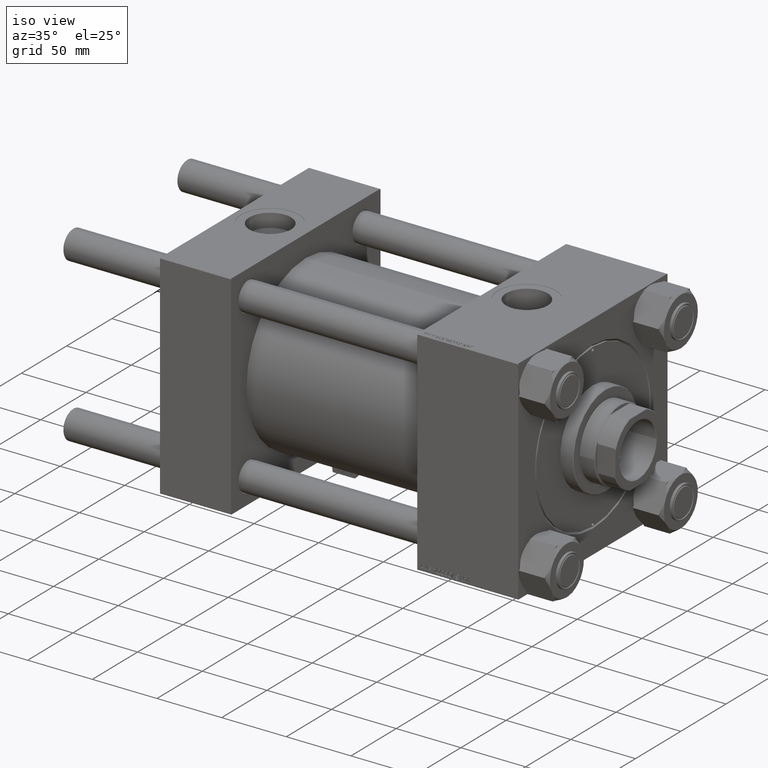
[diagram: clean part render]
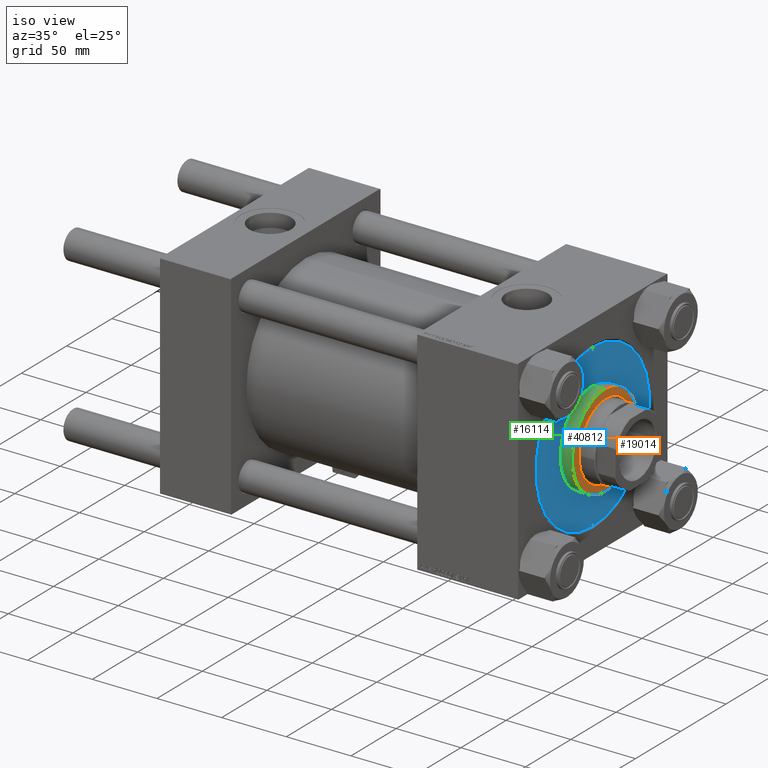
[diagram: same view with three faces highlighted in distinct colors, each labeled with its STEP entity id]
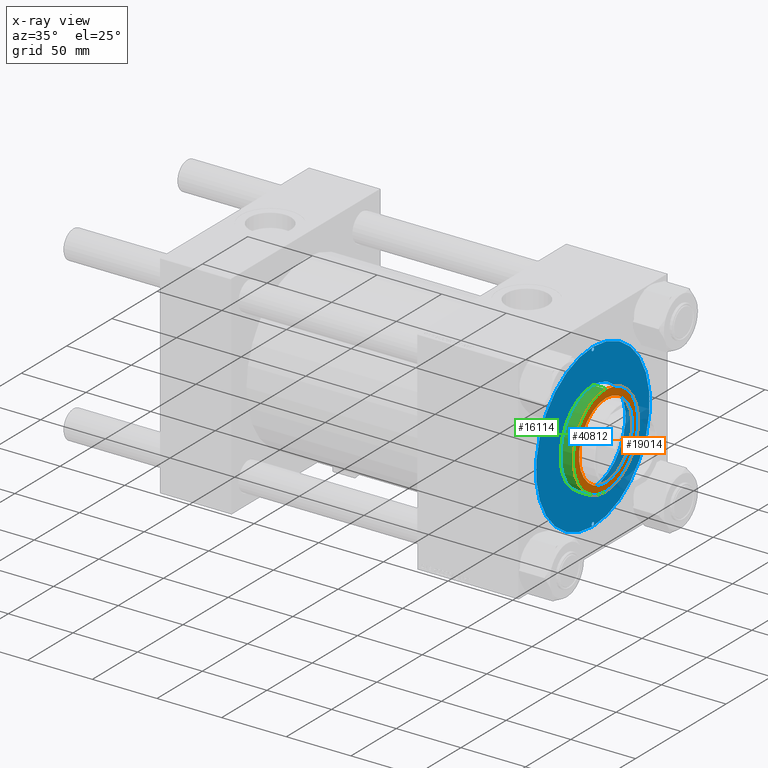
[diagram: x-ray of the same camera — body ghosted, the three highlighted faces saturated]
A machine part, iso view with three faces highlighted in distinct colors.
The next image is the same camera in x-ray (body ghosted, the three faces saturated) — at least one of them is partly hidden behind the body in this view.
Their STEP definitions:

[orange] entity #19014 — the highlighted planar face has unit normal (1, 0, -0).
#304 = DIRECTION ( 'NONE',  ( 0.000000000000000000, 0.000000000000000000, 1.000000000000000000 ) ) ;
#1872 = CIRCLE ( 'NONE', #32483, 29.50000000000000355 ) ;
#4552 = DIRECTION ( 'NONE',  ( 0.000000000000000000, 0.000000000000000000, 1.000000000000000000 ) ) ;
#5939 = DIRECTION ( 'NONE',  ( 1.000000000000000000, 0.000000000000000000, -0.000000000000000000 ) ) ;
#6591 = CARTESIAN_POINT ( 'NONE',  ( -35.50000000000000711, 0.000000000000000000, 38.69999999999999574 ) ) ;
#6767 = CARTESIAN_POINT ( 'NONE',  ( 0.000000000000000000, 0.000000000000000000, 38.69999999999999574 ) ) ;
#6942 = CIRCLE ( 'NONE', #13753, 29.50000000000000355 ) ;
#7216 = CARTESIAN_POINT ( 'NONE',  ( -29.50000000000000355, 3.612708057484692393E-15, 38.69999999999999574 ) ) ;
#10382 = CIRCLE ( 'NONE', #18107, 35.50000000000000711 ) ;
#10676 = DIRECTION ( 'NONE',  ( 1.000000000000000000, 0.000000000000000000, 0.000000000000000000 ) ) ;
#13097 = AXIS2_PLACEMENT_3D ( 'NONE', #35191, #14457, #5939 ) ;
#13599 = VERTEX_POINT ( 'NONE', #7216 ) ;
#13753 = AXIS2_PLACEMENT_3D ( 'NONE', #6767, #4552, #20789 ) ;
#14457 = DIRECTION ( 'NONE',  ( 0.000000000000000000, 0.000000000000000000, 1.000000000000000000 ) ) ;
#14586 = CARTESIAN_POINT ( 'NONE',  ( 35.50000000000000711, 4.378112306951787069E-15, 38.69999999999999574 ) ) ;
#16542 = CARTESIAN_POINT ( 'NONE',  ( 0.000000000000000000, 0.000000000000000000, 38.69999999999999574 ) ) ;
#18107 = AXIS2_PLACEMENT_3D ( 'NONE', #47650, #27437, #10676 ) ;
#18326 = VERTEX_POINT ( 'NONE', #6591 ) ;
#19014 = ADVANCED_FACE ( 'NONE', ( #42913, #34666 ), #50906, .T. ) ;
#19048 = VERTEX_POINT ( 'NONE', #40523 ) ;
#20379 = ORIENTED_EDGE ( 'NONE', *, *, #38553, .T. ) ;
#20789 = DIRECTION ( 'NONE',  ( 1.000000000000000000, 0.000000000000000000, 0.000000000000000000 ) ) ;
#21125 = DIRECTION ( 'NONE',  ( 1.000000000000000000, 0.000000000000000000, 0.000000000000000000 ) ) ;
#21629 = DIRECTION ( 'NONE',  ( 0.000000000000000000, 0.000000000000000000, 1.000000000000000000 ) ) ;
#21686 = ORIENTED_EDGE ( 'NONE', *, *, #32057, .F. ) ;
#21790 = ORIENTED_EDGE ( 'NONE', *, *, #36888, .T. ) ;
#24135 = CIRCLE ( 'NONE', #35994, 35.50000000000000711 ) ;
#27437 = DIRECTION ( 'NONE',  ( 0.000000000000000000, 0.000000000000000000, 1.000000000000000000 ) ) ;
#29165 = EDGE_LOOP ( 'NONE', ( #30247, #21686 ) ) ;
#30121 = CARTESIAN_POINT ( 'NONE',  ( 0.000000000000000000, 0.000000000000000000, 38.69999999999999574 ) ) ;
#30247 = ORIENTED_EDGE ( 'NONE', *, *, #31644, .F. ) ;
#31644 = EDGE_CURVE ( 'NONE', #19048, #13599, #6942, .T. ) ;
#32057 = EDGE_CURVE ( 'NONE', #13599, #19048, #1872, .T. ) ;
#32405 = EDGE_LOOP ( 'NONE', ( #21790, #20379 ) ) ;
#32483 = AXIS2_PLACEMENT_3D ( 'NONE', #16542, #304, #32760 ) ;
#32760 = DIRECTION ( 'NONE',  ( 1.000000000000000000, 0.000000000000000000, 0.000000000000000000 ) ) ;
#34666 = FACE_OUTER_BOUND ( 'NONE', #32405, .T. ) ;
#35191 = CARTESIAN_POINT ( 'NONE',  ( 0.000000000000000000, 0.000000000000000000, 38.69999999999999574 ) ) ;
#35994 = AXIS2_PLACEMENT_3D ( 'NONE', #30121, #21629, #21125 ) ;
#36888 = EDGE_CURVE ( 'NONE', #18326, #45604, #10382, .T. ) ;
#38553 = EDGE_CURVE ( 'NONE', #45604, #18326, #24135, .T. ) ;
#40523 = CARTESIAN_POINT ( 'NONE',  ( 29.50000000000000355, 0.000000000000000000, 38.69999999999999574 ) ) ;
#42913 = FACE_BOUND ( 'NONE', #29165, .T. ) ;
#45604 = VERTEX_POINT ( 'NONE', #14586 ) ;
#47650 = CARTESIAN_POINT ( 'NONE',  ( 0.000000000000000000, 0.000000000000000000, 38.69999999999999574 ) ) ;
#50906 = PLANE ( 'NONE',  #13097 ) ;

[blue] entity #40812 — the highlighted planar face has unit normal (1, 0, -0).
#50 = ORIENTED_EDGE ( 'NONE', *, *, #19592, .T. ) ;
#396 = VERTEX_POINT ( 'NONE', #9540 ) ;
#575 = DIRECTION ( 'NONE',  ( 0.000000000000000000, 0.000000000000000000, 1.000000000000000000 ) ) ;
#815 = AXIS2_PLACEMENT_3D ( 'NONE', #35116, #23683, #30592 ) ;
#1548 = CARTESIAN_POINT ( 'NONE',  ( 0.000000000000000000, 0.000000000000000000, 28.69999999999999929 ) ) ;
#2476 = EDGE_CURVE ( 'NONE', #43012, #27907, #43793, .T. ) ;
#2840 = DIRECTION ( 'NONE',  ( 0.000000000000000000, 0.000000000000000000, 1.000000000000000000 ) ) ;
#3709 = CIRCLE ( 'NONE', #19875, 62.75000000000000000 ) ;
#3789 = AXIS2_PLACEMENT_3D ( 'NONE', #6048, #39036, #50486 ) ;
#3870 = CIRCLE ( 'NONE', #11502, 1.250000000000001110 ) ;
#4014 = FACE_OUTER_BOUND ( 'NONE', #17238, .T. ) ;
#6048 = CARTESIAN_POINT ( 'NONE',  ( 61.00000000000000000, 0.000000000000000000, 28.69999999999999929 ) ) ;
#7373 = DIRECTION ( 'NONE',  ( 1.000000000000000000, 0.000000000000000000, 0.000000000000000000 ) ) ;
#7396 = EDGE_LOOP ( 'NONE', ( #49376, #21203 ) ) ;
#7677 = CARTESIAN_POINT ( 'NONE',  ( 62.75000000000000000, 7.684658664649641591E-15, 28.69999999999999929 ) ) ;
#8204 = ORIENTED_EDGE ( 'NONE', *, *, #25901, .F. ) ;
#8314 = DIRECTION ( 'NONE',  ( 0.000000000000000000, 0.000000000000000000, 1.000000000000000000 ) ) ;
#9540 = CARTESIAN_POINT ( 'NONE',  ( 62.25000000000000000, 0.000000000000000000, 28.69999999999999929 ) ) ;
#11096 = EDGE_CURVE ( 'NONE', #396, #26195, #27846, .T. ) ;
#11421 = CIRCLE ( 'NONE', #3789, 1.250000000000001110 ) ;
#11502 = AXIS2_PLACEMENT_3D ( 'NONE', #19880, #2840, #7373 ) ;
#12941 = EDGE_LOOP ( 'NONE', ( #21660, #25058 ) ) ;
#13052 = DIRECTION ( 'NONE',  ( 1.000000000000000000, 0.000000000000000000, -0.000000000000000000 ) ) ;
#13231 = DIRECTION ( 'NONE',  ( 1.000000000000000000, 0.000000000000000000, 0.000000000000000000 ) ) ;
#16005 = FACE_BOUND ( 'NONE', #39809, .T. ) ;
#16154 = DIRECTION ( 'NONE',  ( 1.000000000000000000, 0.000000000000000000, 0.000000000000000000 ) ) ;
#17238 = EDGE_LOOP ( 'NONE', ( #17962, #50 ) ) ;
#17618 = VERTEX_POINT ( 'NONE', #32329 ) ;
#17962 = ORIENTED_EDGE ( 'NONE', *, *, #38131, .T. ) ;
#18138 = EDGE_CURVE ( 'NONE', #27907, #43012, #24638, .T. ) ;
#18572 = VERTEX_POINT ( 'NONE', #33703 ) ;
#18590 = DIRECTION ( 'NONE',  ( 0.000000000000000000, 0.000000000000000000, 1.000000000000000000 ) ) ;
#19539 = CIRCLE ( 'NONE', #815, 1.250000000000001110 ) ;
#19592 = EDGE_CURVE ( 'NONE', #20514, #18572, #47430, .T. ) ;
#19875 = AXIS2_PLACEMENT_3D ( 'NONE', #40352, #52602, #16154 ) ;
#19880 = CARTESIAN_POINT ( 'NONE',  ( -61.00000000000000000, 0.000000000000000000, 28.69999999999999929 ) ) ;
#19946 = AXIS2_PLACEMENT_3D ( 'NONE', #25037, #29797, #13052 ) ;
#20257 = FACE_BOUND ( 'NONE', #12941, .T. ) ;
#20514 = VERTEX_POINT ( 'NONE', #7677 ) ;
#21203 = ORIENTED_EDGE ( 'NONE', *, *, #40269, .F. ) ;
#21226 = DIRECTION ( 'NONE',  ( 0.000000000000000000, 0.000000000000000000, 1.000000000000000000 ) ) ;
#21660 = ORIENTED_EDGE ( 'NONE', *, *, #18138, .F. ) ;
#22054 = CARTESIAN_POINT ( 'NONE',  ( 0.000000000000000000, 0.000000000000000000, 28.69999999999999929 ) ) ;
#23683 = DIRECTION ( 'NONE',  ( 0.000000000000000000, 0.000000000000000000, 1.000000000000000000 ) ) ;
#24638 = CIRCLE ( 'NONE', #52654, 36.00000000000000000 ) ;
#25037 = CARTESIAN_POINT ( 'NONE',  ( 0.000000000000000000, 0.000000000000000000, 28.69999999999999929 ) ) ;
#25058 = ORIENTED_EDGE ( 'NONE', *, *, #2476, .F. ) ;
#25901 = EDGE_CURVE ( 'NONE', #17618, #48603, #19539, .T. ) ;
#26195 = VERTEX_POINT ( 'NONE', #41222 ) ;
#26928 = CARTESIAN_POINT ( 'NONE',  ( 36.00000000000000000, 4.408728476930470856E-15, 28.69999999999999929 ) ) ;
#27846 = CIRCLE ( 'NONE', #30363, 1.250000000000001110 ) ;
#27907 = VERTEX_POINT ( 'NONE', #29978 ) ;
#28767 = PLANE ( 'NONE',  #19946 ) ;
#29797 = DIRECTION ( 'NONE',  ( 0.000000000000000000, 0.000000000000000000, 1.000000000000000000 ) ) ;
#29978 = CARTESIAN_POINT ( 'NONE',  ( -36.00000000000000000, 0.000000000000000000, 28.69999999999999929 ) ) ;
#30363 = AXIS2_PLACEMENT_3D ( 'NONE', #49268, #575, #40221 ) ;
#30592 = DIRECTION ( 'NONE',  ( 1.000000000000000000, 0.000000000000000000, 0.000000000000000000 ) ) ;
#32329 = CARTESIAN_POINT ( 'NONE',  ( -59.75000000000000000, 0.000000000000000000, 28.69999999999999929 ) ) ;
#33448 = CARTESIAN_POINT ( 'NONE',  ( 0.000000000000000000, 0.000000000000000000, 28.69999999999999929 ) ) ;
#33703 = CARTESIAN_POINT ( 'NONE',  ( -62.75000000000000000, 0.000000000000000000, 28.69999999999999929 ) ) ;
#35116 = CARTESIAN_POINT ( 'NONE',  ( -61.00000000000000000, 0.000000000000000000, 28.69999999999999929 ) ) ;
#37050 = DIRECTION ( 'NONE',  ( 1.000000000000000000, 0.000000000000000000, 0.000000000000000000 ) ) ;
#38131 = EDGE_CURVE ( 'NONE', #18572, #20514, #3709, .T. ) ;
#38522 = DIRECTION ( 'NONE',  ( 1.000000000000000000, 0.000000000000000000, 0.000000000000000000 ) ) ;
#39036 = DIRECTION ( 'NONE',  ( 0.000000000000000000, 0.000000000000000000, 1.000000000000000000 ) ) ;
#39809 = EDGE_LOOP ( 'NONE', ( #8204, #41409 ) ) ;
#40221 = DIRECTION ( 'NONE',  ( 1.000000000000000000, 0.000000000000000000, 0.000000000000000000 ) ) ;
#40269 = EDGE_CURVE ( 'NONE', #26195, #396, #11421, .T. ) ;
#40352 = CARTESIAN_POINT ( 'NONE',  ( 0.000000000000000000, 0.000000000000000000, 28.69999999999999929 ) ) ;
#40476 = FACE_BOUND ( 'NONE', #7396, .T. ) ;
#40812 = ADVANCED_FACE ( 'NONE', ( #16005, #40476, #20257, #4014 ), #28767, .T. ) ;
#41222 = CARTESIAN_POINT ( 'NONE',  ( 59.75000000000000000, 1.530808498934184175E-16, 28.69999999999999929 ) ) ;
#41409 = ORIENTED_EDGE ( 'NONE', *, *, #42440, .F. ) ;
#42119 = AXIS2_PLACEMENT_3D ( 'NONE', #33448, #21226, #13231 ) ;
#42440 = EDGE_CURVE ( 'NONE', #48603, #17618, #3870, .T. ) ;
#43012 = VERTEX_POINT ( 'NONE', #26928 ) ;
#43793 = CIRCLE ( 'NONE', #42119, 36.00000000000000000 ) ;
#44316 = CARTESIAN_POINT ( 'NONE',  ( -62.25000000000000000, 1.530808498934184175E-16, 28.69999999999999929 ) ) ;
#45744 = AXIS2_PLACEMENT_3D ( 'NONE', #22054, #18590, #38522 ) ;
#47430 = CIRCLE ( 'NONE', #45744, 62.75000000000000000 ) ;
#48603 = VERTEX_POINT ( 'NONE', #44316 ) ;
#49268 = CARTESIAN_POINT ( 'NONE',  ( 61.00000000000000000, 0.000000000000000000, 28.69999999999999929 ) ) ;
#49376 = ORIENTED_EDGE ( 'NONE', *, *, #11096, .F. ) ;
#50486 = DIRECTION ( 'NONE',  ( 1.000000000000000000, 0.000000000000000000, 0.000000000000000000 ) ) ;
#52602 = DIRECTION ( 'NONE',  ( 0.000000000000000000, 0.000000000000000000, 1.000000000000000000 ) ) ;
#52654 = AXIS2_PLACEMENT_3D ( 'NONE', #1548, #8314, #37050 ) ;

[green] entity #16114 — the highlighted cylindrical surface (partial cylindrical patch) has radius 36 mm, axis along (-1, -0, 0).
#720 = EDGE_CURVE ( 'NONE', #51940, #43012, #29460, .T. ) ;
#1232 = CARTESIAN_POINT ( 'NONE',  ( 36.00000000000000000, 4.408728476930470856E-15, 38.69999999999999574 ) ) ;
#1498 = CYLINDRICAL_SURFACE ( 'NONE', #36429, 36.00000000000000000 ) ;
#1504 = CIRCLE ( 'NONE', #29557, 36.00000000000000000 ) ;
#1548 = CARTESIAN_POINT ( 'NONE',  ( 0.000000000000000000, 0.000000000000000000, 28.69999999999999929 ) ) ;
#8314 = DIRECTION ( 'NONE',  ( 0.000000000000000000, 0.000000000000000000, 1.000000000000000000 ) ) ;
#11237 = EDGE_CURVE ( 'NONE', #51940, #25041, #1504, .T. ) ;
#13908 = EDGE_LOOP ( 'NONE', ( #46364, #52643, #21509, #43634 ) ) ;
#16114 = ADVANCED_FACE ( 'NONE', ( #50716 ), #1498, .T. ) ;
#16180 = EDGE_CURVE ( 'NONE', #25041, #27907, #35005, .T. ) ;
#17499 = DIRECTION ( 'NONE',  ( -1.000000000000000000, 0.000000000000000000, 0.000000000000000000 ) ) ;
#18138 = EDGE_CURVE ( 'NONE', #27907, #43012, #24638, .T. ) ;
#21509 = ORIENTED_EDGE ( 'NONE', *, *, #16180, .T. ) ;
#21981 = VECTOR ( 'NONE', #51781, 1000.000000000000000 ) ;
#21993 = CARTESIAN_POINT ( 'NONE',  ( 0.000000000000000000, 0.000000000000000000, 38.69999999999999574 ) ) ;
#24638 = CIRCLE ( 'NONE', #52654, 36.00000000000000000 ) ;
#25041 = VERTEX_POINT ( 'NONE', #27129 ) ;
#26928 = CARTESIAN_POINT ( 'NONE',  ( 36.00000000000000000, 4.408728476930470856E-15, 28.69999999999999929 ) ) ;
#27129 = CARTESIAN_POINT ( 'NONE',  ( -36.00000000000000000, 0.000000000000000000, 38.20000000000001705 ) ) ;
#27907 = VERTEX_POINT ( 'NONE', #29978 ) ;
#29460 = LINE ( 'NONE', #1232, #37788 ) ;
#29557 = AXIS2_PLACEMENT_3D ( 'NONE', #51553, #31323, #52082 ) ;
#29978 = CARTESIAN_POINT ( 'NONE',  ( -36.00000000000000000, 0.000000000000000000, 28.69999999999999929 ) ) ;
#30747 = CARTESIAN_POINT ( 'NONE',  ( -36.00000000000000000, 0.000000000000000000, 38.69999999999999574 ) ) ;
#31323 = DIRECTION ( 'NONE',  ( 0.000000000000000000, 0.000000000000000000, -1.000000000000000000 ) ) ;
#35005 = LINE ( 'NONE', #30747, #21981 ) ;
#36429 = AXIS2_PLACEMENT_3D ( 'NONE', #21993, #37450, #17499 ) ;
#37050 = DIRECTION ( 'NONE',  ( 1.000000000000000000, 0.000000000000000000, 0.000000000000000000 ) ) ;
#37450 = DIRECTION ( 'NONE',  ( -0.000000000000000000, -0.000000000000000000, -1.000000000000000000 ) ) ;
#37788 = VECTOR ( 'NONE', #45411, 1000.000000000000000 ) ;
#43012 = VERTEX_POINT ( 'NONE', #26928 ) ;
#43634 = ORIENTED_EDGE ( 'NONE', *, *, #18138, .T. ) ;
#45411 = DIRECTION ( 'NONE',  ( -0.000000000000000000, -0.000000000000000000, -1.000000000000000000 ) ) ;
#46364 = ORIENTED_EDGE ( 'NONE', *, *, #720, .F. ) ;
#49236 = CARTESIAN_POINT ( 'NONE',  ( 36.00000000000000000, 4.408728476930470856E-15, 38.20000000000001705 ) ) ;
#50716 = FACE_OUTER_BOUND ( 'NONE', #13908, .T. ) ;
#51553 = CARTESIAN_POINT ( 'NONE',  ( 0.000000000000000000, 0.000000000000000000, 38.20000000000001705 ) ) ;
#51781 = DIRECTION ( 'NONE',  ( -0.000000000000000000, -0.000000000000000000, -1.000000000000000000 ) ) ;
#51940 = VERTEX_POINT ( 'NONE', #49236 ) ;
#52082 = DIRECTION ( 'NONE',  ( 1.000000000000000000, 0.000000000000000000, 0.000000000000000000 ) ) ;
#52643 = ORIENTED_EDGE ( 'NONE', *, *, #11237, .T. ) ;
#52654 = AXIS2_PLACEMENT_3D ( 'NONE', #1548, #8314, #37050 ) ;